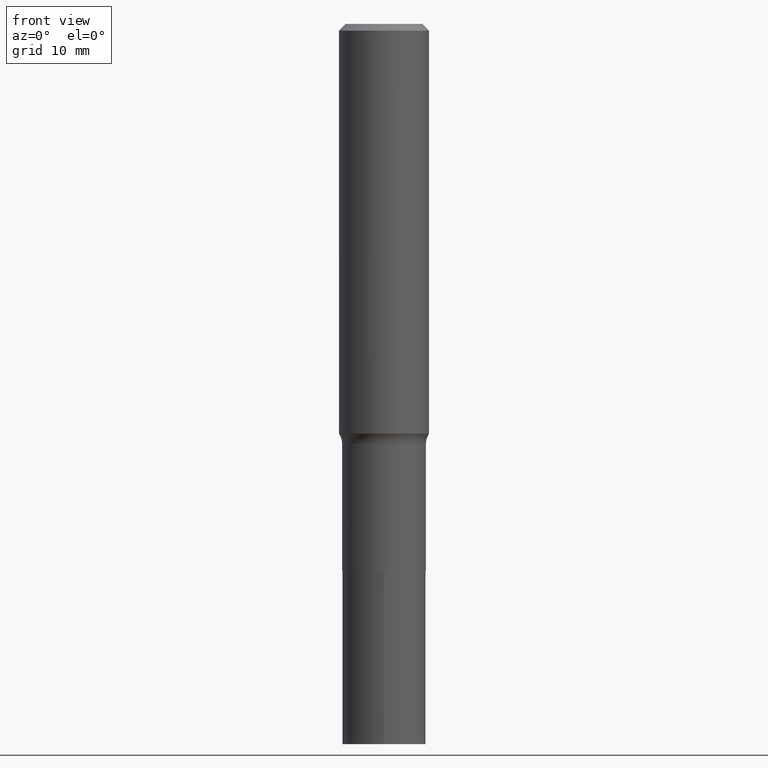
[diagram: clean part render]
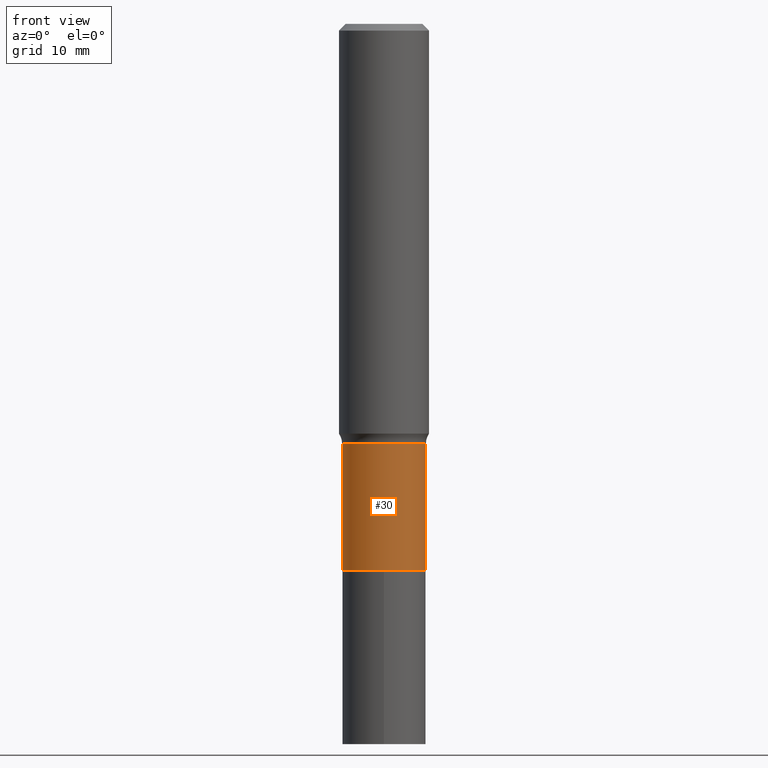
[diagram: same view with one face highlighted and labeled with its STEP entity id]
A machine part, front view. The second image highlights one B-rep face of the part: STEP entity #30.
In plain terms, the highlighted cylindrical surface (partial cylindrical patch) has radius 4.6495 mm, axis along (-0, 0, 1).
Its self-contained STEP definition (entity closure, byte-faithful):
#5 = DIRECTION ( 'NONE',  ( -2.445468806185136877E-29, 3.491481338843145188E-15, 1.000000000000000000 ) ) ;
#7 = CARTESIAN_POINT ( 'NONE',  ( 4.491592556320240911E-29, -6.412803775053206012E-15, -1.836699999999999999 ) ) ;
#23 = VERTEX_POINT ( 'NONE', #234 ) ;
#26 = EDGE_LOOP ( 'NONE', ( #159, #374, #295, #81 ) ) ;
#30 = ADVANCED_FACE ( 'NONE', ( #228 ), #92, .T. ) ;
#37 = AXIS2_PLACEMENT_3D ( 'NONE', #336, #269, #306 ) ;
#61 = CARTESIAN_POINT ( 'NONE',  ( 0.1830499999999999905, -9.626712347458317933E-15, -2.391100000000000225 ) ) ;
#64 = VERTEX_POINT ( 'NONE', #304 ) ;
#80 = DIRECTION ( 'NONE',  ( -2.445468806185136597E-29, 3.491481338843145583E-15, 1.000000000000000000 ) ) ;
#81 = ORIENTED_EDGE ( 'NONE', *, *, #233, .F. ) ;
#92 = CYLINDRICAL_SURFACE ( 'NONE', #37, 0.1830499999999999350 ) ;
#102 = CARTESIAN_POINT ( 'NONE',  ( -0.1830499999999999072, -6.079993924371663316E-15, -1.836699999999999999 ) ) ;
#103 = CIRCLE ( 'NONE', #360, 0.1830499999999999072 ) ;
#111 = LINE ( 'NONE', #220, #139 ) ;
#119 = CARTESIAN_POINT ( 'NONE',  ( -0.1830499999999999350, 1.300648477808862928E-15, -9.004110682711602587E-30 ) ) ;
#127 = VERTEX_POINT ( 'NONE', #102 ) ;
#139 = VECTOR ( 'NONE', #254, 39.37007874015748143 ) ;
#151 = LINE ( 'NONE', #119, #460 ) ;
#153 = DIRECTION ( 'NONE',  ( 1.000000000000000000, -6.982962677686263555E-15, 0.000000000000000000 ) ) ;
#159 = ORIENTED_EDGE ( 'NONE', *, *, #284, .F. ) ;
#188 = DIRECTION ( 'NONE',  ( 1.000000000000000000, -6.982962677686271444E-15, 0.000000000000000000 ) ) ;
#209 = CIRCLE ( 'NONE', #376, 0.1830499999999999905 ) ;
#214 = CARTESIAN_POINT ( 'NONE',  ( 5.847360462469281123E-29, -8.348481029307846477E-15, -2.391100000000000225 ) ) ;
#216 = EDGE_CURVE ( 'NONE', #23, #448, #209, .T. ) ;
#220 = CARTESIAN_POINT ( 'NONE',  ( 0.1830499999999999350, -1.278231318150470667E-15, 8.925841588094458053E-30 ) ) ;
#228 = FACE_OUTER_BOUND ( 'NONE', #26, .T. ) ;
#233 = EDGE_CURVE ( 'NONE', #127, #64, #103, .T. ) ;
#234 = CARTESIAN_POINT ( 'NONE',  ( -0.1830499999999999905, -6.079993924371662527E-15, -2.391100000000000225 ) ) ;
#254 = DIRECTION ( 'NONE',  ( -2.445468806185136877E-29, 3.491481338843145188E-15, 1.000000000000000000 ) ) ;
#269 = DIRECTION ( 'NONE',  ( -2.445468806185136597E-29, 3.491481338843145583E-15, 1.000000000000000000 ) ) ;
#284 = EDGE_CURVE ( 'NONE', #23, #127, #151, .T. ) ;
#295 = ORIENTED_EDGE ( 'NONE', *, *, #312, .T. ) ;
#304 = CARTESIAN_POINT ( 'NONE',  ( 0.1830499999999999072, -7.691035093203675890E-15, -1.836699999999999999 ) ) ;
#306 = DIRECTION ( 'NONE',  ( 1.000000000000000000, -6.982962677686266711E-15, 4.876176775795936353E-29 ) ) ;
#312 = EDGE_CURVE ( 'NONE', #448, #64, #111, .T. ) ;
#336 = CARTESIAN_POINT ( 'NONE',  ( 0.000000000000000000, 0.000000000000000000, 0.000000000000000000 ) ) ;
#360 = AXIS2_PLACEMENT_3D ( 'NONE', #7, #361, #153 ) ;
#361 = DIRECTION ( 'NONE',  ( -2.445468806185136597E-29, 3.491481338843145583E-15, 1.000000000000000000 ) ) ;
#374 = ORIENTED_EDGE ( 'NONE', *, *, #216, .T. ) ;
#376 = AXIS2_PLACEMENT_3D ( 'NONE', #214, #80, #188 ) ;
#448 = VERTEX_POINT ( 'NONE', #61 ) ;
#460 = VECTOR ( 'NONE', #5, 39.37007874015748143 ) ;